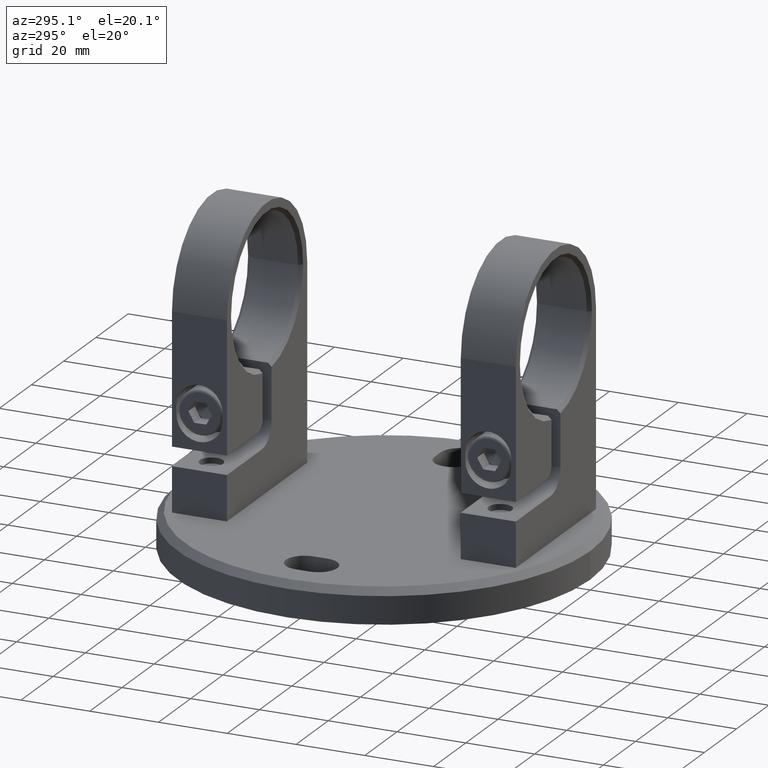
[diagram: clean part render]
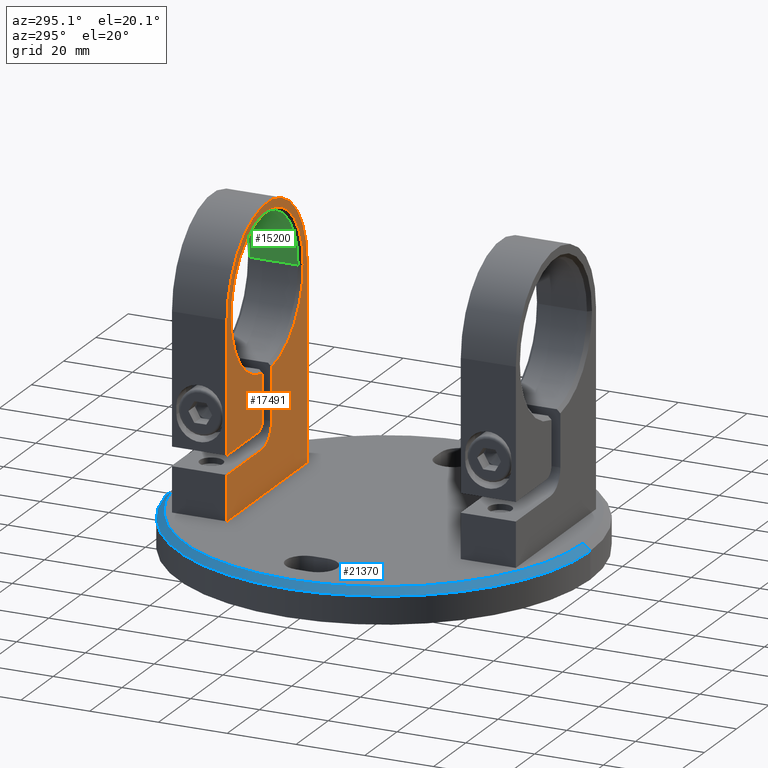
[diagram: same view with three faces highlighted in distinct colors, each labeled with its STEP entity id]
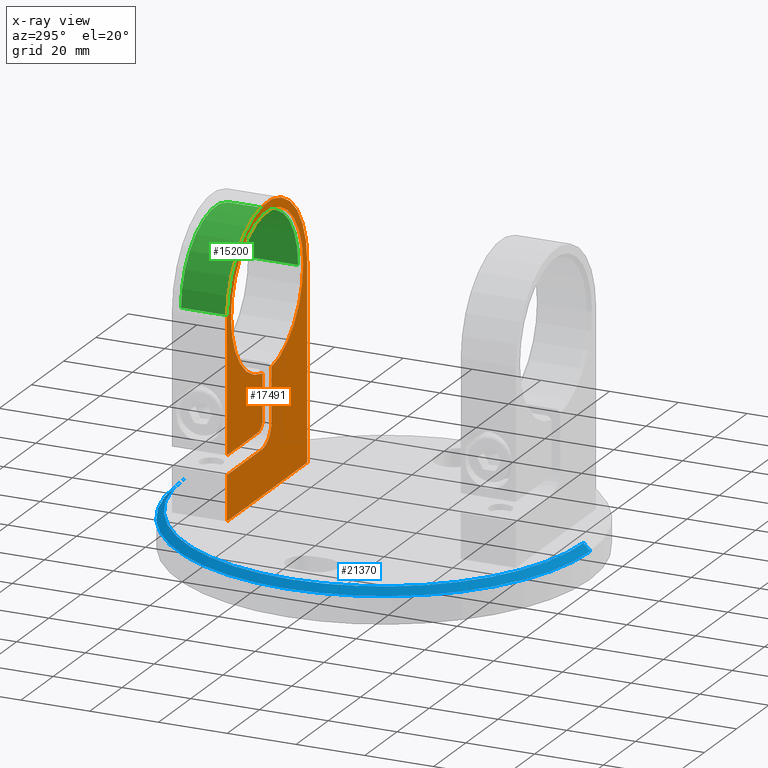
[diagram: x-ray of the same camera — body ghosted, the three highlighted faces saturated]
A machine part, auxiliary view with three faces highlighted in distinct colors.
The next image is the same camera in x-ray (body ghosted, the three faces saturated) — at least one of them is partly hidden behind the body in this view.
Their STEP definitions:

[orange] entity #17491 — the highlighted planar face has unit normal (-0, -1, 0).
#116 = ORIENTED_EDGE ( 'NONE', *, *, #15371, .F. ) ;
#736 = CIRCLE ( 'NONE', #13452, 22.39999999999999900 ) ;
#770 = CARTESIAN_POINT ( 'NONE',  ( 8.000000000000000000, 0.0000000000000000000, -24.89999999999998400 ) ) ;
#1787 = CARTESIAN_POINT ( 'NONE',  ( 8.000000000000000000, 13.00000000000000000, 3.249999999999996400 ) ) ;
#1866 = DIRECTION ( 'NONE',  ( 0.0000000000000000000, 0.0000000000000000000, -1.000000000000000000 ) ) ;
#1906 = CARTESIAN_POINT ( 'NONE',  ( 8.000000000000000000, 56.39999999999998400, 24.89999999999999100 ) ) ;
#2023 = DIRECTION ( 'NONE',  ( 0.0000000000000000000, -1.000000000000000000, -2.536622075190498700E-016 ) ) ;
#2352 = VERTEX_POINT ( 'NONE', #11790 ) ;
#2659 = VERTEX_POINT ( 'NONE', #13730 ) ;
#2696 = CARTESIAN_POINT ( 'NONE',  ( 8.000000000000000000, 56.39999999999998400, 6.162975822039154700E-030 ) ) ;
#2904 = VERTEX_POINT ( 'NONE', #1787 ) ;
#2932 = VECTOR ( 'NONE', #4269, 1000.000000000000000 ) ;
#2988 = LINE ( 'NONE', #15293, #9042 ) ;
#3340 = EDGE_CURVE ( 'NONE', #2352, #2904, #14842, .T. ) ;
#3404 = VERTEX_POINT ( 'NONE', #22590 ) ;
#3487 = LINE ( 'NONE', #6306, #12802 ) ;
#3997 = VECTOR ( 'NONE', #20020, 1000.000000000000000 ) ;
#4269 = DIRECTION ( 'NONE',  ( 0.0000000000000000000, 1.000000000000000000, -1.230300337572202900E-016 ) ) ;
#4613 = EDGE_CURVE ( 'NONE', #3404, #2659, #19517, .T. ) ;
#4910 = AXIS2_PLACEMENT_3D ( 'NONE', #17486, #19313, #6894 ) ;
#4985 = AXIS2_PLACEMENT_3D ( 'NONE', #5605, #14444, #11124 ) ;
#5092 = CIRCLE ( 'NONE', #10977, 5.999999999999998200 ) ;
#5110 = LINE ( 'NONE', #15854, #20998 ) ;
#5148 = EDGE_CURVE ( 'NONE', #15303, #11617, #736, .T. ) ;
#5156 = DIRECTION ( 'NONE',  ( 0.0000000000000000000, 0.0000000000000000000, -1.000000000000000000 ) ) ;
#5169 = CARTESIAN_POINT ( 'NONE',  ( 8.000000000000000000, 56.39999999999998400, 6.162975822039154700E-030 ) ) ;
#5345 = ORIENTED_EDGE ( 'NONE', *, *, #6019, .T. ) ;
#5537 = CIRCLE ( 'NONE', #4985, 22.39999999999999900 ) ;
#5575 = PLANE ( 'NONE',  #6694 ) ;
#5605 = CARTESIAN_POINT ( 'NONE',  ( 8.000000000000000000, 56.39999999999998400, 6.162975822039154700E-030 ) ) ;
#5635 = VECTOR ( 'NONE', #19612, 1000.000000000000000 ) ;
#5710 = EDGE_CURVE ( 'NONE', #18694, #6545, #7019, .T. ) ;
#6003 = CARTESIAN_POINT ( 'NONE',  ( 8.000000000000000000, 56.39999999999998400, 6.162975822039154700E-030 ) ) ;
#6019 = EDGE_CURVE ( 'NONE', #2352, #22432, #13880, .T. ) ;
#6177 = ORIENTED_EDGE ( 'NONE', *, *, #5710, .F. ) ;
#6207 = EDGE_CURVE ( 'NONE', #2904, #14998, #5092, .T. ) ;
#6232 = LINE ( 'NONE', #770, #2932 ) ;
#6306 = CARTESIAN_POINT ( 'NONE',  ( 8.000000000000000000, 56.39999999999998400, 24.89999999999999100 ) ) ;
#6422 = CARTESIAN_POINT ( 'NONE',  ( 8.000000000000000000, 13.00000000000000000, 24.89999999999999100 ) ) ;
#6545 = VERTEX_POINT ( 'NONE', #19971 ) ;
#6694 = AXIS2_PLACEMENT_3D ( 'NONE', #21291, #21212, #10728 ) ;
#6894 = DIRECTION ( 'NONE',  ( 0.0000000000000000000, 0.0000000000000000000, 1.000000000000000000 ) ) ;
#7019 = LINE ( 'NONE', #9673, #3997 ) ;
#7041 = VERTEX_POINT ( 'NONE', #11500 ) ;
#7872 = AXIS2_PLACEMENT_3D ( 'NONE', #2696, #14980, #7911 ) ;
#7911 = DIRECTION ( 'NONE',  ( 0.0000000000000000000, 0.0000000000000000000, -1.000000000000000000 ) ) ;
#8118 = ORIENTED_EDGE ( 'NONE', *, *, #9055, .T. ) ;
#8346 = EDGE_LOOP ( 'NONE', ( #12334, #21245, #8118, #8896, #116, #13775, #19380, #5345, #8484, #16995, #20113, #16318, #6177, #11131 ) ) ;
#8484 = ORIENTED_EDGE ( 'NONE', *, *, #16917, .T. ) ;
#8896 = ORIENTED_EDGE ( 'NONE', *, *, #17989, .T. ) ;
#9042 = VECTOR ( 'NONE', #5156, 1000.000000000000000 ) ;
#9055 = EDGE_CURVE ( 'NONE', #11617, #13552, #5537, .T. ) ;
#9554 = DIRECTION ( 'NONE',  ( -1.000000000000000000, -0.0000000000000000000, -0.0000000000000000000 ) ) ;
#9670 = DIRECTION ( 'NONE',  ( 0.0000000000000000000, 1.000000000000000000, -5.361554749610531100E-017 ) ) ;
#9673 = CARTESIAN_POINT ( 'NONE',  ( 7.999999999999992900, 18.50000000000000400, 5.749999999999994700 ) ) ;
#10728 = DIRECTION ( 'NONE',  ( 0.0000000000000000000, 0.0000000000000000000, -1.000000000000000000 ) ) ;
#10977 = AXIS2_PLACEMENT_3D ( 'NONE', #11404, #14870, #16643 ) ;
#11124 = DIRECTION ( 'NONE',  ( 0.0000000000000000000, 0.0000000000000000000, -1.000000000000000000 ) ) ;
#11131 = ORIENTED_EDGE ( 'NONE', *, *, #17339, .F. ) ;
#11404 = CARTESIAN_POINT ( 'NONE',  ( 8.000000000000000000, 19.00000000000000400, 3.249999999999996000 ) ) ;
#11500 = CARTESIAN_POINT ( 'NONE',  ( 8.000000000000000000, 34.16944670054296300, -2.750000000000001800 ) ) ;
#11617 = VERTEX_POINT ( 'NONE', #12568 ) ;
#11625 = CARTESIAN_POINT ( 'NONE',  ( 8.000000000000000000, 0.0000000000000000000, -24.89999999999998400 ) ) ;
#11790 = CARTESIAN_POINT ( 'NONE',  ( 8.000000000000000000, 13.00000000000000000, 24.89999999999999100 ) ) ;
#11820 = VECTOR ( 'NONE', #20441, 1000.000000000000000 ) ;
#12334 = ORIENTED_EDGE ( 'NONE', *, *, #21089, .F. ) ;
#12397 = VECTOR ( 'NONE', #9670, 1000.000000000000000 ) ;
#12568 = CARTESIAN_POINT ( 'NONE',  ( 8.000000000000000000, 56.39999999999998400, 22.40000000000000200 ) ) ;
#12759 = VERTEX_POINT ( 'NONE', #13822 ) ;
#12802 = VECTOR ( 'NONE', #20259, 1000.000000000000000 ) ;
#12932 = LINE ( 'NONE', #14965, #12397 ) ;
#13452 = AXIS2_PLACEMENT_3D ( 'NONE', #6003, #9554, #21936 ) ;
#13552 = VERTEX_POINT ( 'NONE', #20062 ) ;
#13730 = CARTESIAN_POINT ( 'NONE',  ( 8.000000000000000000, 56.39999999999998400, 24.89999999999999100 ) ) ;
#13775 = ORIENTED_EDGE ( 'NONE', *, *, #6207, .F. ) ;
#13822 = CARTESIAN_POINT ( 'NONE',  ( 8.000000000000000000, 21.50000000000000400, 2.749999999999995600 ) ) ;
#13880 = LINE ( 'NONE', #1906, #5635 ) ;
#13893 = EDGE_CURVE ( 'NONE', #2659, #6545, #3487, .T. ) ;
#14444 = DIRECTION ( 'NONE',  ( -1.000000000000000000, -0.0000000000000000000, -0.0000000000000000000 ) ) ;
#14800 = CIRCLE ( 'NONE', #4910, 2.999999999999999100 ) ;
#14842 = LINE ( 'NONE', #6422, #11820 ) ;
#14870 = DIRECTION ( 'NONE',  ( 1.000000000000000000, 0.0000000000000000000, 0.0000000000000000000 ) ) ;
#14965 = CARTESIAN_POINT ( 'NONE',  ( 8.000000000000000000, 19.00000000000000400, -2.750000000000000900 ) ) ;
#14980 = DIRECTION ( 'NONE',  ( -1.000000000000000000, -0.0000000000000000000, -0.0000000000000000000 ) ) ;
#14998 = VERTEX_POINT ( 'NONE', #22389 ) ;
#15293 = CARTESIAN_POINT ( 'NONE',  ( 8.000000000000000000, 0.0000000000000000000, 24.89999999999998400 ) ) ;
#15303 = VERTEX_POINT ( 'NONE', #17817 ) ;
#15371 = EDGE_CURVE ( 'NONE', #14998, #7041, #12932, .T. ) ;
#15535 = AXIS2_PLACEMENT_3D ( 'NONE', #5169, #20949, #1866 ) ;
#15854 = CARTESIAN_POINT ( 'NONE',  ( 8.000000000000000000, 35.17742946766344400, 2.749999999999999100 ) ) ;
#16186 = CARTESIAN_POINT ( 'NONE',  ( 7.999999999999992900, 18.50000000000000400, 5.749999999999993800 ) ) ;
#16318 = ORIENTED_EDGE ( 'NONE', *, *, #13893, .T. ) ;
#16442 = FACE_OUTER_BOUND ( 'NONE', #8346, .T. ) ;
#16643 = DIRECTION ( 'NONE',  ( 0.0000000000000000000, 0.0000000000000000000, -1.000000000000000000 ) ) ;
#16699 = CIRCLE ( 'NONE', #7872, 22.39999999999999900 ) ;
#16900 = CARTESIAN_POINT ( 'NONE',  ( 8.000000000000000000, 0.0000000000000000000, 24.89999999999998400 ) ) ;
#16917 = EDGE_CURVE ( 'NONE', #22432, #21688, #2988, .T. ) ;
#16995 = ORIENTED_EDGE ( 'NONE', *, *, #18417, .T. ) ;
#17339 = EDGE_CURVE ( 'NONE', #12759, #18694, #14800, .T. ) ;
#17486 = CARTESIAN_POINT ( 'NONE',  ( 7.999999999999992900, 21.50000000000000400, 5.749999999999994700 ) ) ;
#17491 = ADVANCED_FACE ( 'NONE', ( #16442 ), #5575, .T. ) ;
#17817 = CARTESIAN_POINT ( 'NONE',  ( 8.000000000000000000, 34.16944670054296300, 2.749999999999998700 ) ) ;
#17989 = EDGE_CURVE ( 'NONE', #13552, #7041, #16699, .T. ) ;
#18417 = EDGE_CURVE ( 'NONE', #21688, #3404, #6232, .T. ) ;
#18694 = VERTEX_POINT ( 'NONE', #16186 ) ;
#19313 = DIRECTION ( 'NONE',  ( -1.000000000000000000, 0.0000000000000000000, 0.0000000000000000000 ) ) ;
#19380 = ORIENTED_EDGE ( 'NONE', *, *, #3340, .F. ) ;
#19517 = CIRCLE ( 'NONE', #15535, 24.89999999999999500 ) ;
#19612 = DIRECTION ( 'NONE',  ( 0.0000000000000000000, -1.000000000000000000, -1.230300337572202900E-016 ) ) ;
#19971 = CARTESIAN_POINT ( 'NONE',  ( 8.000000000000000000, 18.50000000000000400, 24.89999999999998800 ) ) ;
#20020 = DIRECTION ( 'NONE',  ( 0.0000000000000000000, -1.811721645928780300E-016, 1.000000000000000000 ) ) ;
#20062 = CARTESIAN_POINT ( 'NONE',  ( 8.000000000000000000, 56.39999999999998400, -22.40000000000000200 ) ) ;
#20113 = ORIENTED_EDGE ( 'NONE', *, *, #4613, .T. ) ;
#20259 = DIRECTION ( 'NONE',  ( 0.0000000000000000000, -1.000000000000000000, -1.230300337572202900E-016 ) ) ;
#20441 = DIRECTION ( 'NONE',  ( 0.0000000000000000000, -1.602515913142546900E-016, -1.000000000000000000 ) ) ;
#20949 = DIRECTION ( 'NONE',  ( 1.000000000000000000, 0.0000000000000000000, 0.0000000000000000000 ) ) ;
#20998 = VECTOR ( 'NONE', #2023, 1000.000000000000000 ) ;
#21089 = EDGE_CURVE ( 'NONE', #15303, #12759, #5110, .T. ) ;
#21212 = DIRECTION ( 'NONE',  ( 1.000000000000000000, 0.0000000000000000000, 0.0000000000000000000 ) ) ;
#21245 = ORIENTED_EDGE ( 'NONE', *, *, #5148, .T. ) ;
#21291 = CARTESIAN_POINT ( 'NONE',  ( 8.000000000000000000, 56.39999999999998400, 6.162975822039154700E-030 ) ) ;
#21688 = VERTEX_POINT ( 'NONE', #11625 ) ;
#21936 = DIRECTION ( 'NONE',  ( 0.0000000000000000000, 9.293161478447182000E-016, -1.000000000000000000 ) ) ;
#22389 = CARTESIAN_POINT ( 'NONE',  ( 8.000000000000000000, 19.00000000000000400, -2.750000000000001800 ) ) ;
#22432 = VERTEX_POINT ( 'NONE', #16900 ) ;
#22590 = CARTESIAN_POINT ( 'NONE',  ( 8.000000000000000000, 56.39999999999998400, -24.89999999999999100 ) ) ;

[blue] entity #21370 — the highlighted conical surface has half-angle 45 deg.
#3 = AXIS2_PLACEMENT_3D ( 'NONE', #22229, #17137, #13434 ) ;
#168 = FACE_OUTER_BOUND ( 'NONE', #19209, .T. ) ;
#3181 = AXIS2_PLACEMENT_3D ( 'NONE', #9973, #22207, #6504 ) ;
#3692 = ORIENTED_EDGE ( 'NONE', *, *, #4324, .T. ) ;
#4324 = EDGE_CURVE ( 'NONE', #6419, #22367, #20060, .T. ) ;
#4747 = VERTEX_POINT ( 'NONE', #12735 ) ;
#5801 = EDGE_CURVE ( 'NONE', #6419, #18376, #12520, .T. ) ;
#6297 = ORIENTED_EDGE ( 'NONE', *, *, #15480, .F. ) ;
#6419 = VERTEX_POINT ( 'NONE', #10409 ) ;
#6504 = DIRECTION ( 'NONE',  ( 0.0000000000000000000, 0.0000000000000000000, 1.000000000000000000 ) ) ;
#7983 = CIRCLE ( 'NONE', #14171, 60.00000000000000000 ) ;
#9892 = DIRECTION ( 'NONE',  ( 0.0000000000000000000, 0.0000000000000000000, 1.000000000000000000 ) ) ;
#9973 = CARTESIAN_POINT ( 'NONE',  ( 0.0000000000000000000, 10.00000000000000000, 0.0000000000000000000 ) ) ;
#10048 = DIRECTION ( 'NONE',  ( -0.0000000000000000000, -1.000000000000000000, -0.0000000000000000000 ) ) ;
#10409 = CARTESIAN_POINT ( 'NONE',  ( 0.0000000000000000000, 10.00000000000000000, -58.00000000000000000 ) ) ;
#10505 = CARTESIAN_POINT ( 'NONE',  ( 7.102951435054648100E-015, 10.00000000000000000, 58.00000000000000000 ) ) ;
#11493 = CARTESIAN_POINT ( 'NONE',  ( 7.225416114969383200E-015, 10.00000000000000000, 58.00000000000000000 ) ) ;
#12520 = CIRCLE ( 'NONE', #3181, 58.00000000000000000 ) ;
#12735 = CARTESIAN_POINT ( 'NONE',  ( 7.347880794884118400E-015, 7.999999999999998200, 60.00000000000000000 ) ) ;
#13335 = CARTESIAN_POINT ( 'NONE',  ( 0.0000000000000000000, 7.999999999999998200, 0.0000000000000000000 ) ) ;
#13434 = DIRECTION ( 'NONE',  ( 0.0000000000000000000, 0.0000000000000000000, -1.000000000000000000 ) ) ;
#14106 = DIRECTION ( 'NONE',  ( 8.659560562354919300E-017, -0.7071067811865487900, 0.7071067811865463500 ) ) ;
#14171 = AXIS2_PLACEMENT_3D ( 'NONE', #13335, #10048, #9892 ) ;
#14256 = VECTOR ( 'NONE', #14106, 1000.000000000000000 ) ;
#14971 = CONICAL_SURFACE ( 'NONE', #3, 58.00000000000000000, 0.7853981633974466100 ) ;
#15480 = EDGE_CURVE ( 'NONE', #4747, #22367, #7983, .T. ) ;
#15974 = CARTESIAN_POINT ( 'NONE',  ( 0.0000000000000000000, 10.00000000000000000, -58.00000000000000000 ) ) ;
#16177 = ORIENTED_EDGE ( 'NONE', *, *, #17318, .F. ) ;
#16513 = ORIENTED_EDGE ( 'NONE', *, *, #5801, .F. ) ;
#16713 = DIRECTION ( 'NONE',  ( 0.0000000000000000000, -0.7071067811865487900, -0.7071067811865463500 ) ) ;
#17137 = DIRECTION ( 'NONE',  ( 0.0000000000000000000, -1.000000000000000000, 0.0000000000000000000 ) ) ;
#17318 = EDGE_CURVE ( 'NONE', #18376, #4747, #18644, .T. ) ;
#18376 = VERTEX_POINT ( 'NONE', #11493 ) ;
#18644 = LINE ( 'NONE', #10505, #14256 ) ;
#19209 = EDGE_LOOP ( 'NONE', ( #16177, #16513, #3692, #6297 ) ) ;
#20060 = LINE ( 'NONE', #15974, #20871 ) ;
#20381 = CARTESIAN_POINT ( 'NONE',  ( 0.0000000000000000000, 7.999999999999998200, -60.00000000000000000 ) ) ;
#20871 = VECTOR ( 'NONE', #16713, 1000.000000000000000 ) ;
#21370 = ADVANCED_FACE ( 'NONE', ( #168 ), #14971, .T. ) ;
#22207 = DIRECTION ( 'NONE',  ( 0.0000000000000000000, 1.000000000000000000, 0.0000000000000000000 ) ) ;
#22229 = CARTESIAN_POINT ( 'NONE',  ( 0.0000000000000000000, 10.00000000000000000, 0.0000000000000000000 ) ) ;
#22367 = VERTEX_POINT ( 'NONE', #20381 ) ;

[green] entity #15200 — the highlighted cylindrical surface (partial cylindrical patch) has radius 21.4 mm, axis along (-0, -1, 0).
#365 = AXIS2_PLACEMENT_3D ( 'NONE', #13039, #19867, #16598 ) ;
#434 = ORIENTED_EDGE ( 'NONE', *, *, #5501, .T. ) ;
#456 = CIRCLE ( 'NONE', #3913, 21.39999999999998400 ) ;
#460 = VERTEX_POINT ( 'NONE', #21893 ) ;
#489 = CARTESIAN_POINT ( 'NONE',  ( 6.999999999999985800, 56.39999999999998400, 0.0000000000000000000 ) ) ;
#768 = EDGE_CURVE ( 'NONE', #19626, #460, #19739, .T. ) ;
#1756 = CIRCLE ( 'NONE', #365, 21.39999999999998400 ) ;
#2041 = LINE ( 'NONE', #19893, #13308 ) ;
#2150 = CARTESIAN_POINT ( 'NONE',  ( -8.000000000000000000, 56.39999999999998400, 0.0000000000000000000 ) ) ;
#2470 = VERTEX_POINT ( 'NONE', #21712 ) ;
#3593 = EDGE_CURVE ( 'NONE', #19626, #7643, #1756, .T. ) ;
#3913 = AXIS2_PLACEMENT_3D ( 'NONE', #489, #19863, #7527 ) ;
#4309 = AXIS2_PLACEMENT_3D ( 'NONE', #2150, #21537, #14599 ) ;
#5501 = EDGE_CURVE ( 'NONE', #2470, #460, #456, .T. ) ;
#5544 = DIRECTION ( 'NONE',  ( 1.000000000000000000, 0.0000000000000000000, 0.0000000000000000000 ) ) ;
#5693 = CARTESIAN_POINT ( 'NONE',  ( -8.000000000000000000, 56.39999999999998400, 21.39999999999998400 ) ) ;
#5737 = VECTOR ( 'NONE', #5544, 1000.000000000000000 ) ;
#5799 = FACE_OUTER_BOUND ( 'NONE', #7858, .T. ) ;
#6578 = EDGE_CURVE ( 'NONE', #7643, #2470, #2041, .T. ) ;
#7527 = DIRECTION ( 'NONE',  ( 0.0000000000000000000, 0.0000000000000000000, -1.000000000000000000 ) ) ;
#7643 = VERTEX_POINT ( 'NONE', #14052 ) ;
#7858 = EDGE_LOOP ( 'NONE', ( #16132, #12339, #17788, #434 ) ) ;
#9404 = DIRECTION ( 'NONE',  ( 1.000000000000000000, 0.0000000000000000000, 0.0000000000000000000 ) ) ;
#12339 = ORIENTED_EDGE ( 'NONE', *, *, #3593, .T. ) ;
#12572 = CARTESIAN_POINT ( 'NONE',  ( -7.000000000000006200, 56.39999999999998400, 21.39999999999999500 ) ) ;
#13039 = CARTESIAN_POINT ( 'NONE',  ( -7.000000000000006200, 56.39999999999998400, 0.0000000000000000000 ) ) ;
#13308 = VECTOR ( 'NONE', #9404, 1000.000000000000000 ) ;
#14052 = CARTESIAN_POINT ( 'NONE',  ( -7.000000000000006200, 56.39999999999998400, -21.39999999999999500 ) ) ;
#14599 = DIRECTION ( 'NONE',  ( 0.0000000000000000000, 0.0000000000000000000, -1.000000000000000000 ) ) ;
#15200 = ADVANCED_FACE ( 'NONE', ( #5799 ), #19521, .F. ) ;
#16132 = ORIENTED_EDGE ( 'NONE', *, *, #768, .F. ) ;
#16598 = DIRECTION ( 'NONE',  ( 0.0000000000000000000, 0.0000000000000000000, -1.000000000000000000 ) ) ;
#17788 = ORIENTED_EDGE ( 'NONE', *, *, #6578, .T. ) ;
#19521 = CYLINDRICAL_SURFACE ( 'NONE', #4309, 21.39999999999998400 ) ;
#19626 = VERTEX_POINT ( 'NONE', #12572 ) ;
#19739 = LINE ( 'NONE', #5693, #5737 ) ;
#19863 = DIRECTION ( 'NONE',  ( 1.000000000000000000, 0.0000000000000000000, 0.0000000000000000000 ) ) ;
#19867 = DIRECTION ( 'NONE',  ( -1.000000000000000000, -0.0000000000000000000, -0.0000000000000000000 ) ) ;
#19893 = CARTESIAN_POINT ( 'NONE',  ( -8.000000000000000000, 56.39999999999998400, -21.39999999999998400 ) ) ;
#21537 = DIRECTION ( 'NONE',  ( 1.000000000000000000, 0.0000000000000000000, 0.0000000000000000000 ) ) ;
#21712 = CARTESIAN_POINT ( 'NONE',  ( 6.999999999999985800, 56.39999999999998400, -21.39999999999999500 ) ) ;
#21893 = CARTESIAN_POINT ( 'NONE',  ( 6.999999999999985800, 56.39999999999998400, 21.39999999999999500 ) ) ;